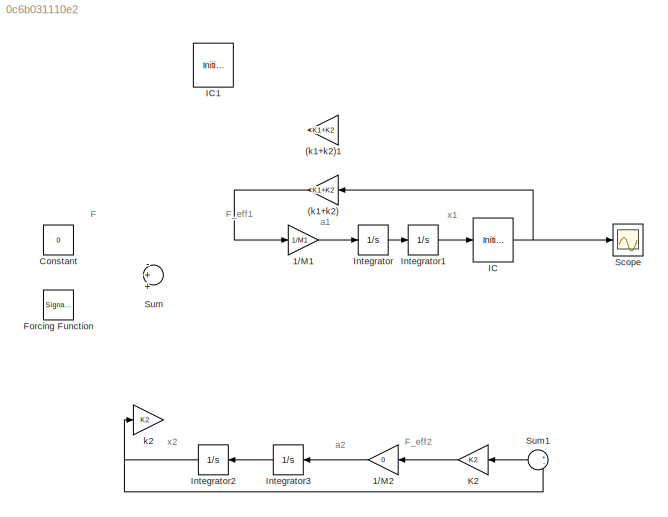
MODEL slx_0c6b031110e2
KIND model
BLOCK [Gain] (k1+k2)
  Gain = K1+K2
  OutDataTypeStr = Inherit: Inherit via internal rule
  ParamDataTypeStr = Inherit: Inherit via internal rule
  SaturateOnIntegerOverflow = off
BLOCK [Gain] (k1+k2)1
  Gain = K1+K2
  OutDataTypeStr = Inherit: Inherit via internal rule
  ParamDataTypeStr = Inherit: Inherit via internal rule
  SaturateOnIntegerOverflow = off
BLOCK [Gain] 1//M1
  Gain = 1/M1
  OutDataTypeStr = Inherit: Inherit via internal rule
  ParamDataTypeStr = Inherit: Inherit via internal rule
  SaturateOnIntegerOverflow = off
BLOCK [Gain] 1//M2
  Commented = on
  Gain = 0
  OutDataTypeStr = Inherit: Inherit via internal rule
  ParamDataTypeStr = Inherit: Inherit via internal rule
  SaturateOnIntegerOverflow = off
BLOCK [Constant] Constant
  Commented = on
  Value = 0
BLOCK [SignalGenerator] Forcing Function
  Commented = on
  Ports = [0, 1]
  WaveForm = square
BLOCK [InitialCondition] IC
BLOCK [InitialCondition] IC1
BLOCK [Integrator] Integrator
  Ports = [1, 1]
BLOCK [Integrator] Integrator1
  Ports = [1, 1]
BLOCK [Integrator] Integrator2
  Commented = on
  Ports = [1, 1]
BLOCK [Integrator] Integrator3
  Commented = on
  Ports = [1, 1]
BLOCK [Gain] K2
  Commented = on
  Gain = K2
  OutDataTypeStr = Inherit: Inherit via internal rule
  ParamDataTypeStr = Inherit: Inherit via internal rule
  SaturateOnIntegerOverflow = off
BLOCK [Scope] Scope
  DataFormat = StructureWithTime
  Floating = off
  LimitDataPoints = off
  NumInputPorts = 1
  Ports = [1]
  SampleTime = 0
  SaveName = TwoMassPositions
  SaveToWorkspace = on
  ShowLegends = off
  YMax = 8e-24
  YMin = -1.5e-24
  ZoomMode = yonly
BLOCK [Sum] Sum
  InputSameDT = off
  Inputs = -++
  OutDataTypeStr = Inherit: Inherit via internal rule
  Ports = [3, 1]
  SaturateOnIntegerOverflow = off
BLOCK [Sum] Sum1
  Commented = on
  IconShape = round
  InputSameDT = off
  Inputs = +-
  OutDataTypeStr = Inherit: Inherit via internal rule
  Ports = [2, 1]
  SaturateOnIntegerOverflow = off
BLOCK [Gain] k2
  Commented = on
  Gain = K2
  OutDataTypeStr = Inherit: Inherit via internal rule
  ParamDataTypeStr = Inherit: Inherit via internal rule
  SaturateOnIntegerOverflow = off
ANNOTATION (root): F
ANNOTATION (root): F_eff1
ANNOTATION (root): F_eff2
ANNOTATION (root): a1
ANNOTATION (root): a2
ANNOTATION (root): x1
ANNOTATION (root): x2
LINE (k1+k2):1 -> 1//M1:1
LINE 1//M1:1 -> Integrator:1
LINE 1//M2:1 -> Integrator3:1
NET IC:1 -> (k1+k2):1, Scope:1
LINE Integrator1:1 -> IC:1
NET Integrator2:1 -> Sum1:2, k2:1
LINE Integrator3:1 -> Integrator2:1
LINE Integrator:1 -> Integrator1:1
LINE K2:1 -> 1//M2:1
LINE Sum1:1 -> K2:1
note: NET lines group one-source signal fan-out (src -> all destinations, sorted); 1:1 wires keep LINE
